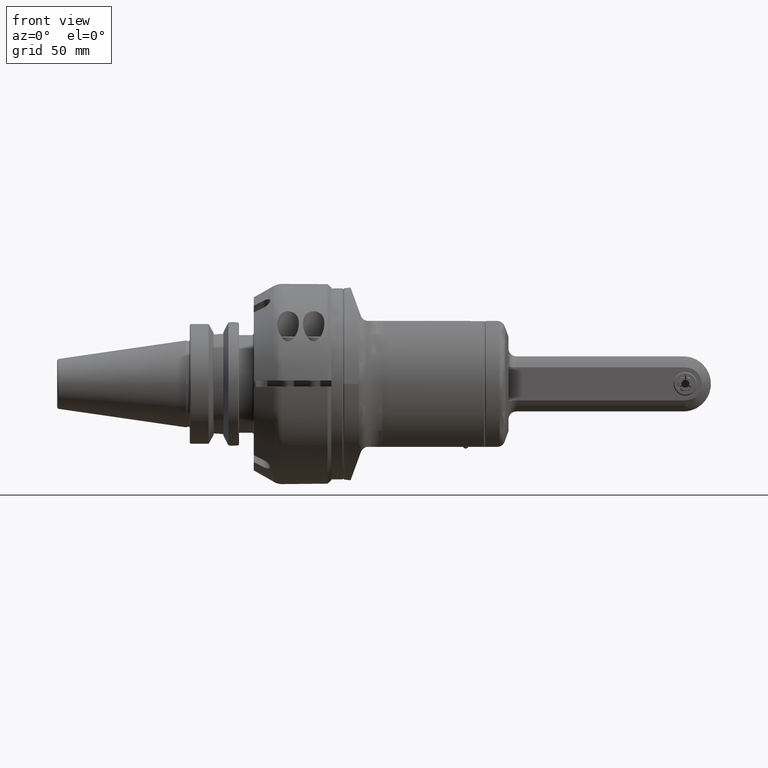
[diagram: clean part render]
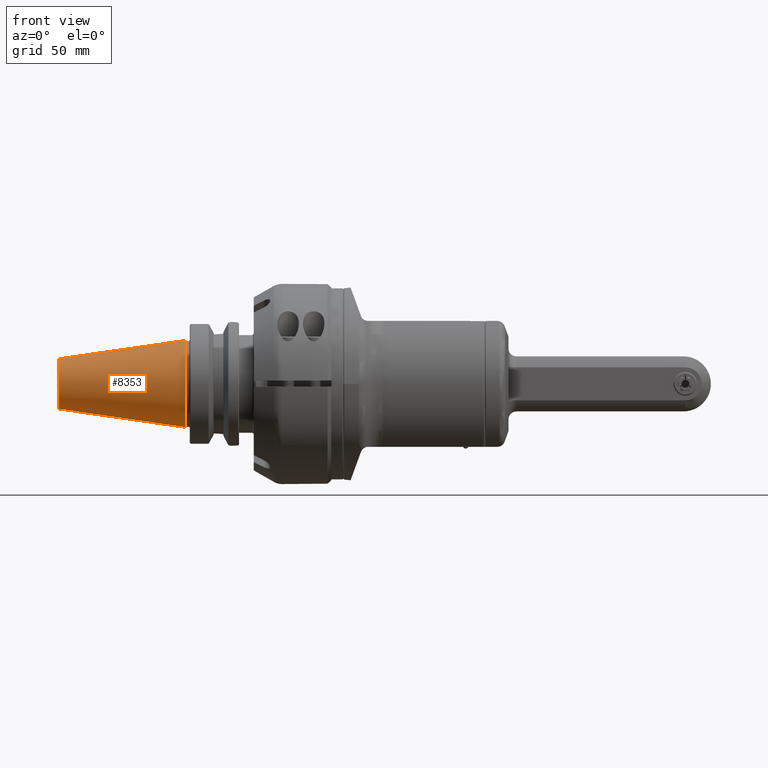
[diagram: same view with one face highlighted and labeled with its STEP entity id]
A machine part, front view. The second image highlights one B-rep face of the part: STEP entity #8353.
In plain terms, the highlighted conical surface has half-angle 8.297 deg.
Its self-contained STEP definition (entity closure, byte-faithful):
#119=CONICAL_SURFACE('',#9252,17.51864715413,0.144812411498922);
#1051=FACE_OUTER_BOUND('',#1598,.T.);
#1598=EDGE_LOOP('',(#7663,#7664,#7665,#7666,#7667));
#2327=LINE('',#45520,#2907);
#2907=VECTOR('',#11486,17.51864715413);
#3279=CIRCLE('',#9250,22.225);
#3280=CIRCLE('',#9251,22.225);
#3281=CIRCLE('',#9253,12.81229430825);
#4068=VERTEX_POINT('',#45513);
#4069=VERTEX_POINT('',#45514);
#4070=VERTEX_POINT('',#45519);
#5270=EDGE_CURVE('',#4068,#4069,#3279,.T.);
#5271=EDGE_CURVE('',#4069,#4068,#3280,.T.);
#5273=EDGE_CURVE('',#4069,#4070,#2327,.T.);
#5274=EDGE_CURVE('',#4070,#4070,#3281,.T.);
#7663=ORIENTED_EDGE('',*,*,#5270,.F.);
#7664=ORIENTED_EDGE('',*,*,#5271,.F.);
#7665=ORIENTED_EDGE('',*,*,#5273,.T.);
#7666=ORIENTED_EDGE('',*,*,#5274,.F.);
#7667=ORIENTED_EDGE('',*,*,#5273,.F.);
#8353=ADVANCED_FACE('',(#1051),#119,.T.);
#9250=AXIS2_PLACEMENT_3D('',#45515,#11479,#11480);
#9251=AXIS2_PLACEMENT_3D('',#45516,#11481,#11482);
#9252=AXIS2_PLACEMENT_3D('',#45518,#11484,#11485);
#9253=AXIS2_PLACEMENT_3D('',#45521,#11487,#11488);
#11479=DIRECTION('center_axis',(1.,0.,0.));
#11480=DIRECTION('ref_axis',(0.,1.,0.));
#11481=DIRECTION('center_axis',(1.,0.,0.));
#11482=DIRECTION('ref_axis',(0.,1.,0.));
#11484=DIRECTION('center_axis',(1.,0.,0.));
#11485=DIRECTION('ref_axis',(0.,-1.,0.));
#11486=DIRECTION('',(-0.98953299358046,-0.144306807239621,-1.76724869581176E-17));
#11487=DIRECTION('center_axis',(-1.,0.,0.));
#11488=DIRECTION('ref_axis',(0.,1.,0.));
#45513=CARTESIAN_POINT('',(-86.,-22.225,0.));
#45514=CARTESIAN_POINT('',(-86.0000000000006,22.225000000004,2.72177751110548E-15));
#45515=CARTESIAN_POINT('Origin',(-86.,0.,0.));
#45516=CARTESIAN_POINT('Origin',(-86.,0.,0.));
#45518=CARTESIAN_POINT('Origin',(-118.27215340362,0.,0.));
#45519=CARTESIAN_POINT('',(-150.5443068072,12.81229430825,0.));
#45520=CARTESIAN_POINT('',(-118.27215340362,17.51864715413,2.14541551626972E-15));
#45521=CARTESIAN_POINT('Origin',(-150.5443068072,0.,0.));